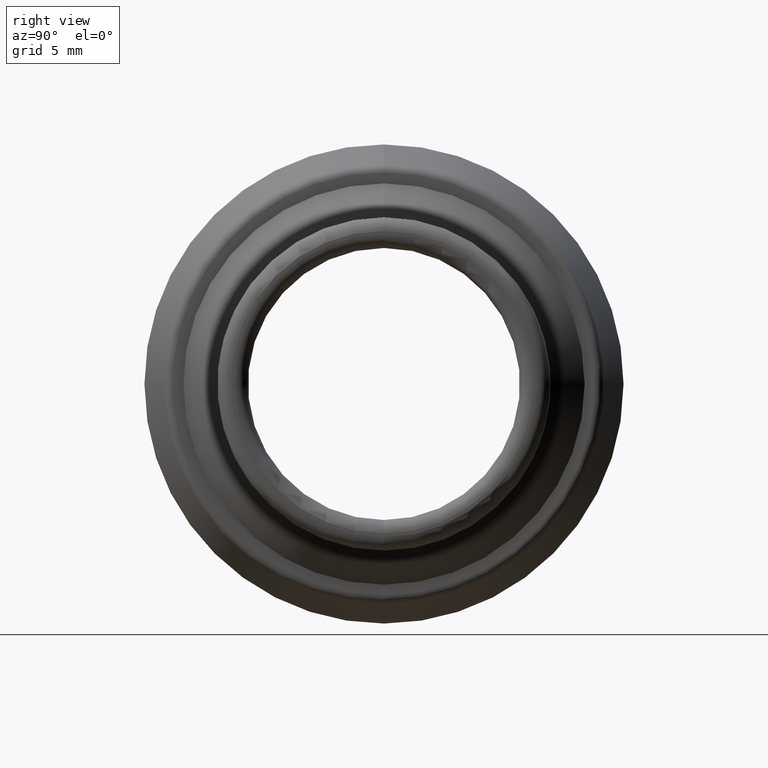
[diagram: clean part render]
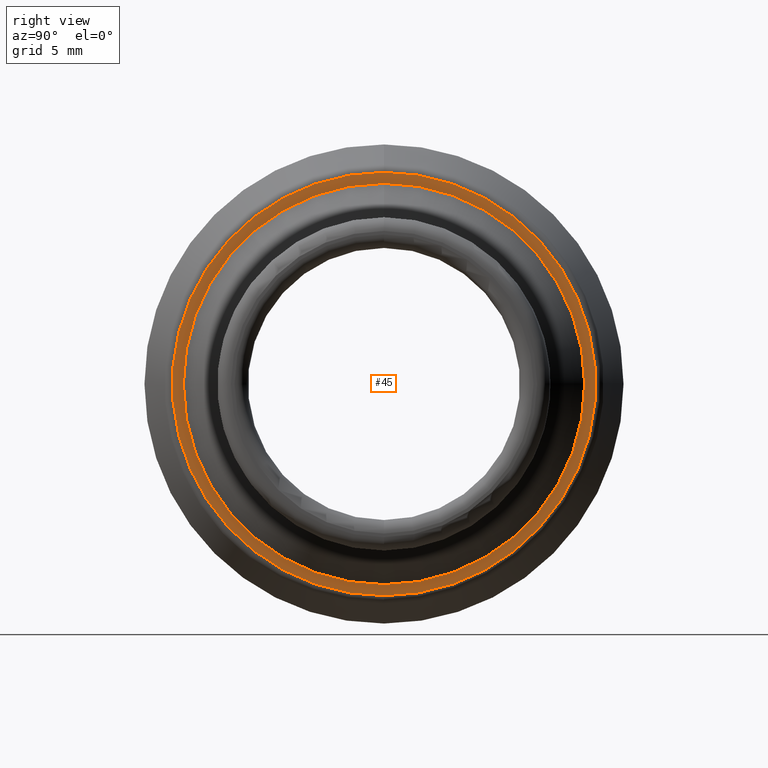
[diagram: same view with one face highlighted and labeled with its STEP entity id]
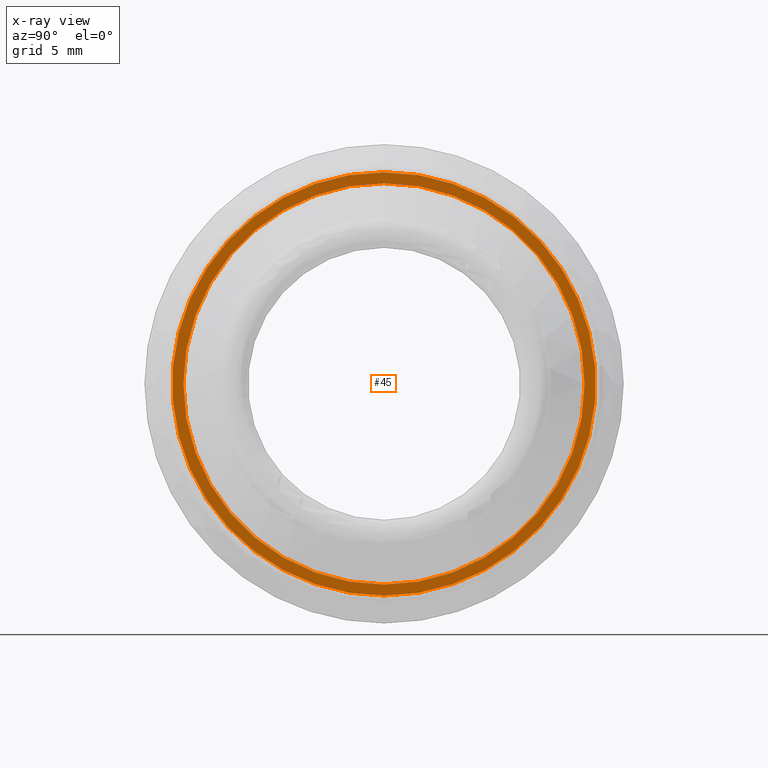
[diagram: x-ray of the same camera — body ghosted, the highlighted face saturated]
A machine part, right view. The second image highlights one B-rep face of the part: STEP entity #45.
The next image is the same camera in x-ray: the body ghosted, the highlighted face saturated — about 0% of this face is hidden behind the body in this view.
In plain terms, the highlighted planar face has unit normal (1, 0, 0).
Its self-contained STEP definition (entity closure, byte-faithful):
#45=ADVANCED_FACE('',(#103,#74),#254,.T.);
#74=FACE_OUTER_BOUND('',#107,.F.);
#103=FACE_BOUND('',#106,.F.);
#106=EDGE_LOOP('',(#138,#139));
#107=EDGE_LOOP('',(#140,#141));
#138=ORIENTED_EDGE('',*,*,#292,.T.);
#139=ORIENTED_EDGE('',*,*,#291,.T.);
#140=ORIENTED_EDGE('',*,*,#290,.F.);
#141=ORIENTED_EDGE('',*,*,#289,.F.);
#254=PLANE('',#500);
#289=EDGE_CURVE('',#424,#423,#347,.T.);
#290=EDGE_CURVE('',#423,#424,#348,.T.);
#291=EDGE_CURVE('',#422,#421,#349,.T.);
#292=EDGE_CURVE('',#421,#422,#350,.T.);
#347=CIRCLE('',#454,12.4476404018815);
#348=CIRCLE('',#455,12.4476404018815);
#349=CIRCLE('',#456,11.8);
#350=CIRCLE('',#457,11.8);
#421=VERTEX_POINT('',#731);
#422=VERTEX_POINT('',#732);
#423=VERTEX_POINT('',#733);
#424=VERTEX_POINT('',#734);
#454=AXIS2_PLACEMENT_3D('',#735,#535,#536);
#455=AXIS2_PLACEMENT_3D('',#736,#537,#538);
#456=AXIS2_PLACEMENT_3D('',#737,#539,#540);
#457=AXIS2_PLACEMENT_3D('',#738,#541,#542);
#500=AXIS2_PLACEMENT_3D('',#793,#639,#640);
#535=DIRECTION('',(1.,0.,0.));
#536=DIRECTION('',(0.,0.,-1.));
#537=DIRECTION('',(1.,0.,0.));
#538=DIRECTION('',(0.,0.,1.));
#539=DIRECTION('',(1.,0.,0.));
#540=DIRECTION('',(0.,0.,-1.));
#541=DIRECTION('',(1.,0.,0.));
#542=DIRECTION('',(0.,0.,1.));
#639=DIRECTION('',(1.,0.,0.));
#640=DIRECTION('',(0.,-1.,0.));
#731=CARTESIAN_POINT('',(54.7150000130991,-49.9999958811694,11.7999998728228));
#732=CARTESIAN_POINT('',(54.7150000130991,-49.9999958811694,-11.8000001271772));
#733=CARTESIAN_POINT('',(54.7150000130991,-49.9999958811694,12.4476402747043));
#734=CARTESIAN_POINT('',(54.7150000130991,-49.9999958811694,-12.4476405290587));
#735=CARTESIAN_POINT('',(54.7150000130991,-49.9999958811694,-1.271772005328E-07));
#736=CARTESIAN_POINT('',(54.7150000130991,-49.9999958811694,-1.271772005328E-07));
#737=CARTESIAN_POINT('',(54.7150000130991,-49.9999958811694,-1.271772005328E-07));
#738=CARTESIAN_POINT('',(54.7150000130991,-49.9999958811694,-1.271772005328E-07));
#793=CARTESIAN_POINT('',(54.7150000130991,-35.6999958811694,14.2999998728228));